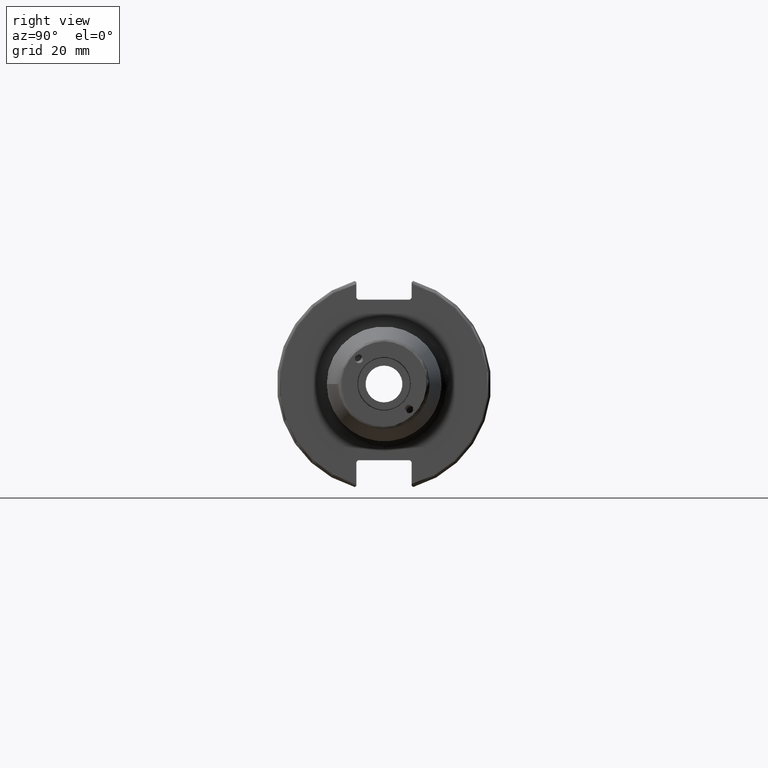
[diagram: clean part render]
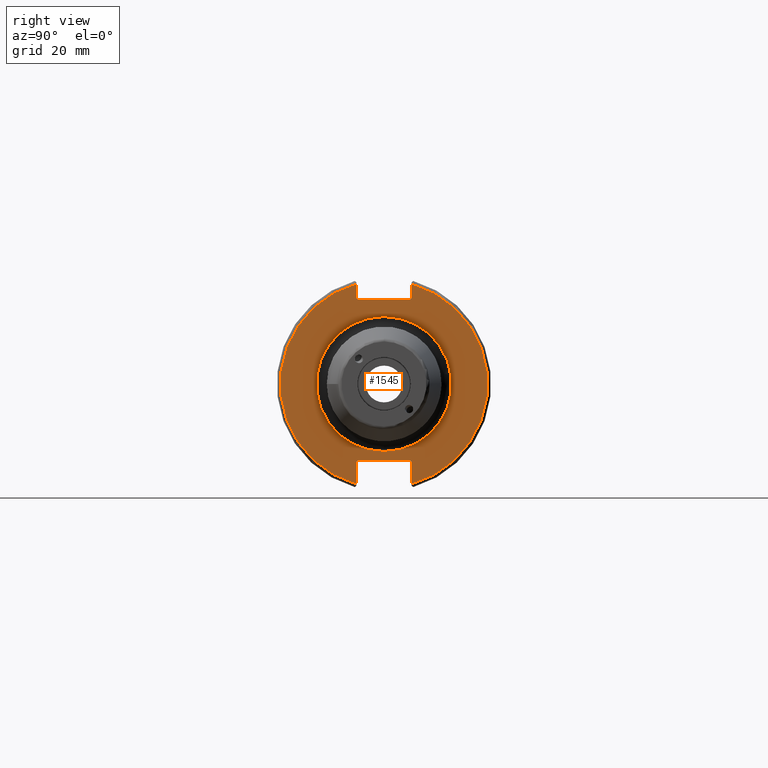
[diagram: same view with one face highlighted and labeled with its STEP entity id]
A machine part, right view. The second image highlights one B-rep face of the part: STEP entity #1545.
In plain terms, the highlighted planar face has unit normal (1, 0, 0).
Its self-contained STEP definition (entity closure, byte-faithful):
#64=FACE_BOUND('',#279,.T.);
#80=PLANE('',#1673);
#184=FACE_OUTER_BOUND('',#278,.T.);
#278=EDGE_LOOP('',(#1081,#1082,#1083,#1084,#1085,#1086,#1087,#1088,#1089,
#1090,#1091,#1092));
#279=EDGE_LOOP('',(#1093));
#381=LINE('',#2357,#479);
#382=LINE('',#2359,#480);
#383=LINE('',#2361,#481);
#384=LINE('',#2363,#482);
#385=LINE('',#2365,#483);
#386=LINE('',#2369,#484);
#387=LINE('',#2371,#485);
#388=LINE('',#2373,#486);
#389=LINE('',#2375,#487);
#390=LINE('',#2376,#488);
#479=VECTOR('',#1894,10.);
#480=VECTOR('',#1895,10.);
#481=VECTOR('',#1896,10.);
#482=VECTOR('',#1897,10.);
#483=VECTOR('',#1898,10.);
#484=VECTOR('',#1901,10.);
#485=VECTOR('',#1902,10.);
#486=VECTOR('',#1903,10.);
#487=VECTOR('',#1904,10.);
#488=VECTOR('',#1905,10.);
#581=CIRCLE('',#1670,20.);
#583=CIRCLE('',#1674,30.75);
#584=CIRCLE('',#1675,30.75);
#659=VERTEX_POINT('',#2346);
#660=VERTEX_POINT('',#2353);
#661=VERTEX_POINT('',#2354);
#662=VERTEX_POINT('',#2356);
#663=VERTEX_POINT('',#2358);
#664=VERTEX_POINT('',#2360);
#665=VERTEX_POINT('',#2362);
#666=VERTEX_POINT('',#2364);
#667=VERTEX_POINT('',#2366);
#668=VERTEX_POINT('',#2368);
#669=VERTEX_POINT('',#2370);
#670=VERTEX_POINT('',#2372);
#671=VERTEX_POINT('',#2374);
#821=EDGE_CURVE('',#659,#659,#581,.T.);
#824=EDGE_CURVE('',#660,#661,#583,.T.);
#825=EDGE_CURVE('',#660,#662,#381,.T.);
#826=EDGE_CURVE('',#663,#662,#382,.T.);
#827=EDGE_CURVE('',#663,#664,#383,.T.);
#828=EDGE_CURVE('',#665,#664,#384,.T.);
#829=EDGE_CURVE('',#665,#666,#385,.T.);
#830=EDGE_CURVE('',#667,#666,#584,.T.);
#831=EDGE_CURVE('',#667,#668,#386,.T.);
#832=EDGE_CURVE('',#669,#668,#387,.T.);
#833=EDGE_CURVE('',#669,#670,#388,.T.);
#834=EDGE_CURVE('',#671,#670,#389,.T.);
#835=EDGE_CURVE('',#671,#661,#390,.T.);
#1081=ORIENTED_EDGE('',*,*,#824,.F.);
#1082=ORIENTED_EDGE('',*,*,#825,.T.);
#1083=ORIENTED_EDGE('',*,*,#826,.F.);
#1084=ORIENTED_EDGE('',*,*,#827,.T.);
#1085=ORIENTED_EDGE('',*,*,#828,.F.);
#1086=ORIENTED_EDGE('',*,*,#829,.T.);
#1087=ORIENTED_EDGE('',*,*,#830,.F.);
#1088=ORIENTED_EDGE('',*,*,#831,.T.);
#1089=ORIENTED_EDGE('',*,*,#832,.F.);
#1090=ORIENTED_EDGE('',*,*,#833,.T.);
#1091=ORIENTED_EDGE('',*,*,#834,.F.);
#1092=ORIENTED_EDGE('',*,*,#835,.T.);
#1093=ORIENTED_EDGE('',*,*,#821,.F.);
#1545=ADVANCED_FACE('',(#184,#64),#80,.T.);
#1670=AXIS2_PLACEMENT_3D('',#2348,#1883,#1884);
#1673=AXIS2_PLACEMENT_3D('',#2352,#1890,#1891);
#1674=AXIS2_PLACEMENT_3D('',#2355,#1892,#1893);
#1675=AXIS2_PLACEMENT_3D('',#2367,#1899,#1900);
#1883=DIRECTION('center_axis',(1.,0.,0.));
#1884=DIRECTION('ref_axis',(0.,-1.,-1.22464679914735E-16));
#1890=DIRECTION('center_axis',(1.,0.,0.));
#1891=DIRECTION('ref_axis',(0.,0.,-1.));
#1892=DIRECTION('center_axis',(-1.,0.,0.));
#1893=DIRECTION('ref_axis',(0.,1.,-6.12323399573677E-17));
#1894=DIRECTION('',(0.,0.,-1.));
#1895=DIRECTION('',(0.,0.707106781186549,0.707106781186546));
#1896=DIRECTION('',(0.,-1.,0.));
#1897=DIRECTION('',(0.,0.70710678118655,-0.707106781186545));
#1898=DIRECTION('',(0.,0.,1.));
#1899=DIRECTION('center_axis',(-1.,0.,0.));
#1900=DIRECTION('ref_axis',(0.,-1.,1.60812264967664E-16));
#1901=DIRECTION('',(0.,0.,1.));
#1902=DIRECTION('',(0.,-0.707106781186549,-0.707106781186546));
#1903=DIRECTION('',(0.,1.,0.));
#1904=DIRECTION('',(0.,-0.707106781186549,0.707106781186546));
#1905=DIRECTION('',(0.,0.,-1.));
#2346=CARTESIAN_POINT('',(19.05,-2.44929359829471E-15,-20.));
#2348=CARTESIAN_POINT('Origin',(19.05,0.,0.));
#2352=CARTESIAN_POINT('Origin',(19.05,0.,0.));
#2353=CARTESIAN_POINT('',(19.05,8.19,29.6392712461019));
#2354=CARTESIAN_POINT('',(19.05,8.19,-29.6392712461019));
#2355=CARTESIAN_POINT('Origin',(19.05,0.,0.));
#2356=CARTESIAN_POINT('',(19.05,8.19,25.5));
#2357=CARTESIAN_POINT('',(19.05,8.19,12.5));
#2358=CARTESIAN_POINT('',(19.05,7.69,25.));
#2359=CARTESIAN_POINT('',(19.05,-0.35750000000001,16.9525));
#2360=CARTESIAN_POINT('',(19.05,-7.69,25.));
#2361=CARTESIAN_POINT('',(19.05,0.,25.));
#2362=CARTESIAN_POINT('',(19.05,-8.19,25.5));
#2363=CARTESIAN_POINT('',(19.05,0.357500000000014,16.9525));
#2364=CARTESIAN_POINT('',(19.05,-8.19,29.6392712461019));
#2365=CARTESIAN_POINT('',(19.05,-8.19,12.5));
#2366=CARTESIAN_POINT('',(19.05,-8.19,-29.6392712461019));
#2367=CARTESIAN_POINT('Origin',(19.05,0.,0.));
#2368=CARTESIAN_POINT('',(19.05,-8.19,-23.1));
#2369=CARTESIAN_POINT('',(19.05,-8.19,-11.3));
#2370=CARTESIAN_POINT('',(19.05,-7.69,-22.6));
#2371=CARTESIAN_POINT('',(19.05,-0.242499999999991,-15.1525));
#2372=CARTESIAN_POINT('',(19.05,7.69,-22.6));
#2373=CARTESIAN_POINT('',(19.05,-2.77555756156289E-16,-22.6));
#2374=CARTESIAN_POINT('',(19.05,8.19,-23.1));
#2375=CARTESIAN_POINT('',(19.05,0.242499999999989,-15.1525));
#2376=CARTESIAN_POINT('',(19.05,8.19,-11.3));